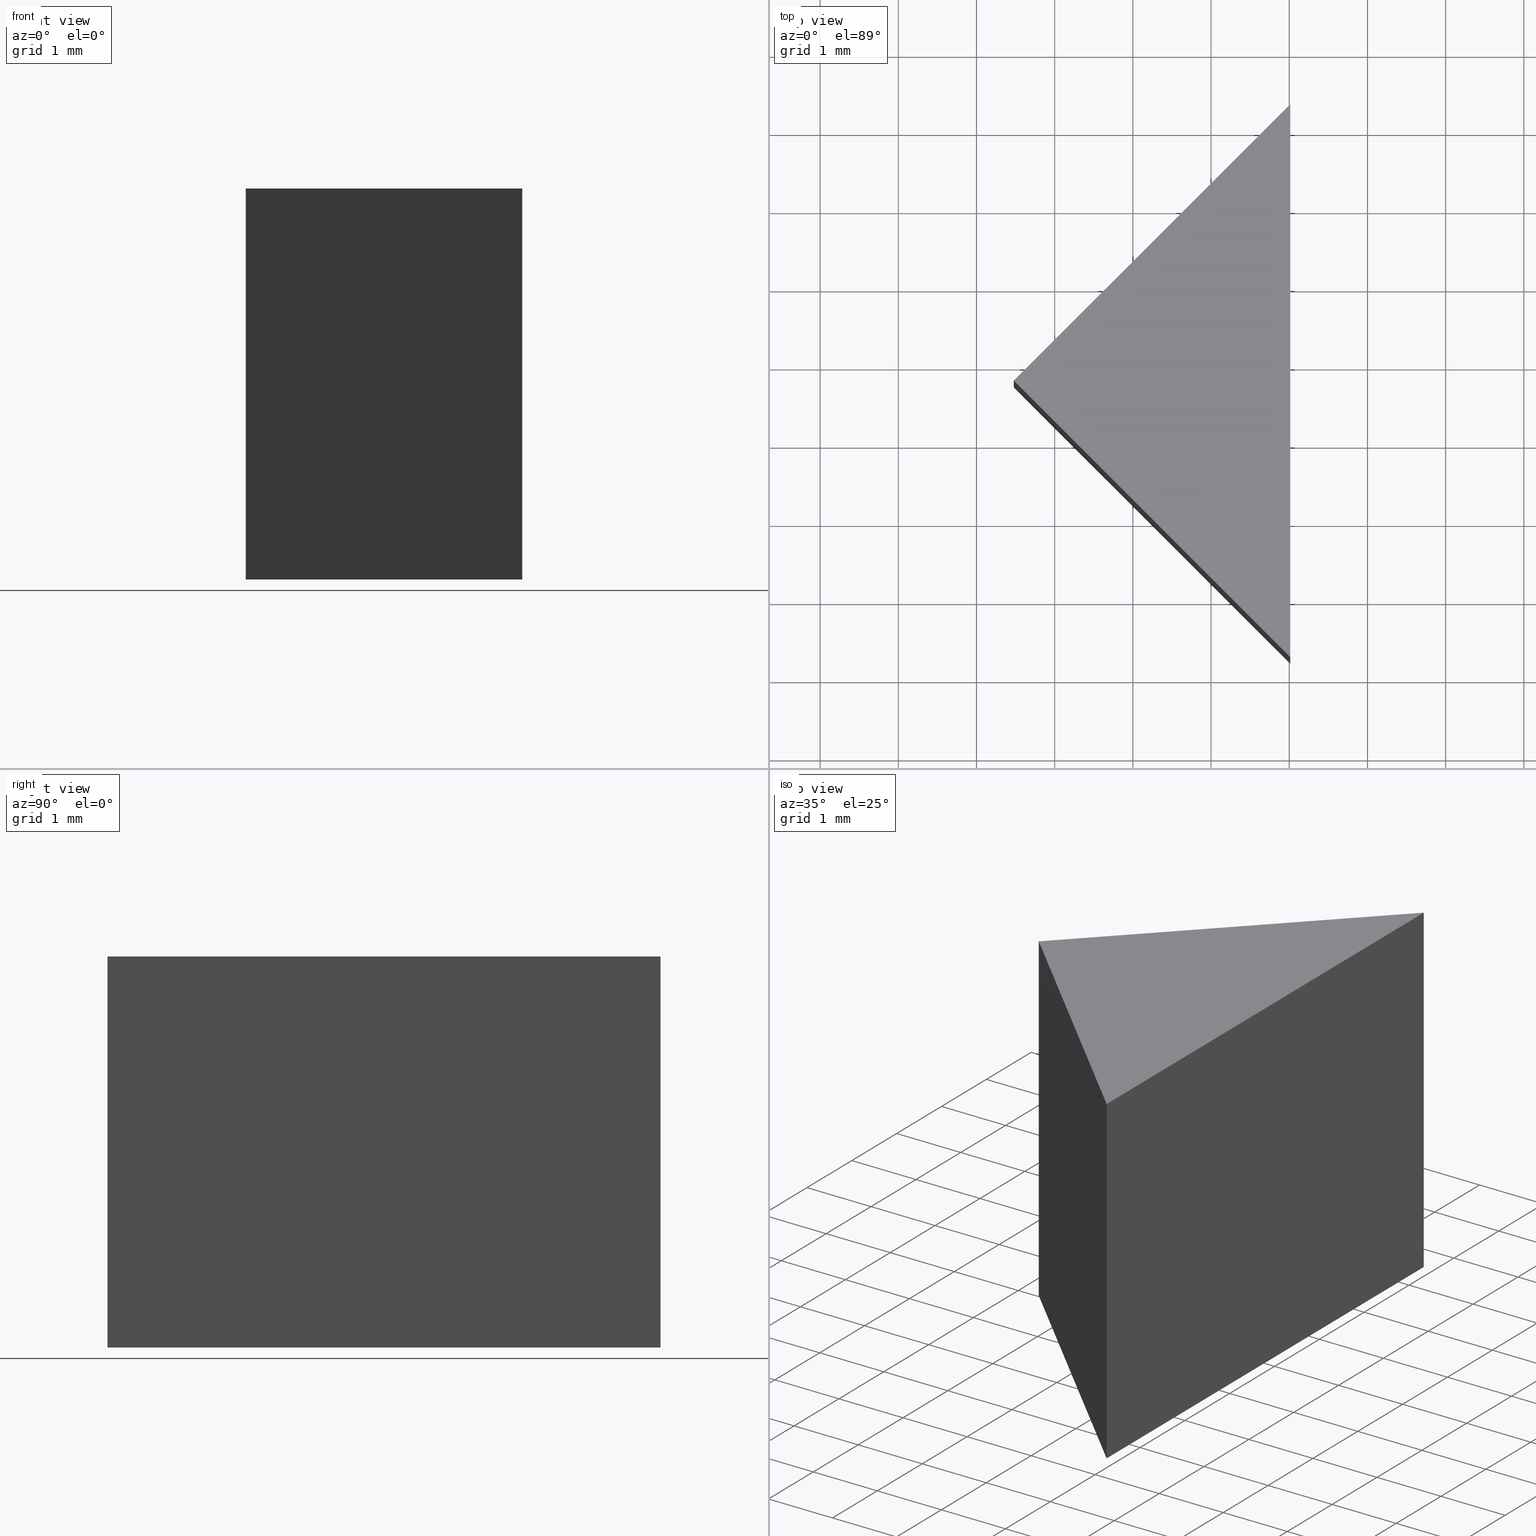
[diagram: canonical four-view strip — front | top / right | iso, engineering-drawing reading convention]
A machine part, canonical four-view strip (front | top / right | iso — engineering-drawing reading convention). The complete STEP part file that produces these views, byte-faithful:
ISO-10303-21;
HEADER;
FILE_DESCRIPTION (( 'STEP AP203' ),
    '1' );
FILE_NAME ('300009.STEP',
    '2025-05-26T07:04:01',
    ( 'Windows User' ),
    ( 'P R C' ),
    'SwSTEP 2.0',
    'SolidWorks 2020',
    '' );
FILE_SCHEMA (( 'CONFIG_CONTROL_DESIGN' ));
ENDSEC;

DATA;
#1 = PERSON_AND_ORGANIZATION ( #104, #89 ) ;
#2 = CARTESIAN_POINT ( 'NONE',  ( 55.47666995259492495, 13.77569255283406235, 5.000000000000000000 ) ) ;
#3 = APPROVAL_PERSON_ORGANIZATION ( #111, #88, #197 ) ;
#4 = CARTESIAN_POINT ( 'NONE',  ( 59.01220385852765560, 10.24015864690132283, -6.505213034913026604E-16 ) ) ;
#5 = VECTOR ( 'NONE', #137, 1000.000000000000000 ) ;
#6 = ORIENTED_EDGE ( 'NONE', *, *, #118, .F. ) ;
#7 = LINE ( 'NONE', #73, #91 ) ;
#8 = CC_DESIGN_PERSON_AND_ORGANIZATION_ASSIGNMENT ( #50, #33, ( #146 ) ) ;
#9 = VECTOR ( 'NONE', #17, 999.9999999999998863 ) ;
#10 = VECTOR ( 'NONE', #90, 1000.000000000000000 ) ;
#11 = PLANE ( 'NONE',  #27 ) ;
#12 = ORIENTED_EDGE ( 'NONE', *, *, #138, .F. ) ;
#13 = DIRECTION ( 'NONE',  ( -0.7071067811865467956, 0.7071067811865483499, 0.000000000000000000 ) ) ;
#14 = ADVANCED_FACE ( 'NONE', ( #85 ), #101, .F. ) ;
#15 = APPLICATION_PROTOCOL_DEFINITION ( 'international standard', 'config_control_design', 1994, #95 ) ;
#16 = APPROVAL_DATE_TIME ( #160, #69 ) ;
#17 = DIRECTION ( 'NONE',  ( 0.7071067811865467956, -0.7071067811865483499, 0.000000000000000000 ) ) ;
#18 = CARTESIAN_POINT ( 'NONE',  ( 55.47666995259492495, 13.77569255283406235, 5.000000000000000000 ) ) ;
#19 = SECURITY_CLASSIFICATION_LEVEL ( 'unclassified' ) ;
#20 = PERSON_AND_ORGANIZATION ( #104, #89 ) ;
#21 = EDGE_LOOP ( 'NONE', ( #62, #164, #202 ) ) ;
#22 = DATE_AND_TIME ( #59, #53 ) ;
#23 = DIRECTION ( 'NONE',  ( 1.000000000000000000, 0.000000000000000000, -0.000000000000000000 ) ) ;
#24 = EDGE_CURVE ( 'NONE', #77, #75, #7, .T. ) ;
#25 = CC_DESIGN_PERSON_AND_ORGANIZATION_ASSIGNMENT ( #177, #135, ( #158 ) ) ;
#26 = LOCAL_TIME ( 15, 4, 1.000000000000000000, #97 ) ;
#27 = AXIS2_PLACEMENT_3D ( 'NONE', #76, #65, #122 ) ;
#28 = CARTESIAN_POINT ( 'NONE',  ( 59.01220385852766981, 17.31122645876679655, 5.000000000000000000 ) ) ;
#29 = CLOSED_SHELL ( 'NONE', ( #123, #14, #47, #183, #83 ) ) ;
#30 = EDGE_LOOP ( 'NONE', ( #6, #113, #43, #121 ) ) ;
#31 = CARTESIAN_POINT ( 'NONE',  ( 59.01220385852766270, 17.31122645876678945, 5.000000000000000000 ) ) ;
#32 = PRODUCT_DEFINITION ( 'δ֪', '', #180, #174 ) ;
#33 = PERSON_AND_ORGANIZATION_ROLE ( 'design_owner' ) ;
#34 = CALENDAR_DATE ( 2025, 26, 5 ) ;
#35 = DIRECTION ( 'NONE',  ( 0.000000000000000000, 0.000000000000000000, 1.000000000000000000 ) ) ;
#36 = CARTESIAN_POINT ( 'NONE',  ( 55.47666995259492495, 13.77569255283406235, 5.000000000000000000 ) ) ;
#37 = PRODUCT_DEFINITION_SHAPE ( 'NONE', 'NONE',  #32 ) ;
#38 = DATE_AND_TIME ( #200, #26 ) ;
#39 = COORDINATED_UNIVERSAL_TIME_OFFSET ( 8, 0, .AHEAD. ) ;
#40 = PLANE ( 'NONE',  #128 ) ;
#41 = PERSON_AND_ORGANIZATION ( #104, #89 ) ;
#42 = CC_DESIGN_APPROVAL ( #69, ( #32 ) ) ;
#43 = ORIENTED_EDGE ( 'NONE', *, *, #64, .F. ) ;
#44 = CC_DESIGN_APPROVAL ( #175, ( #158 ) ) ;
#45 = CC_DESIGN_APPROVAL ( #88, ( #180 ) ) ;
#46 = DIRECTION ( 'NONE',  ( 0.7071067811865486830, 0.7071067811865464625, 0.000000000000000000 ) ) ;
#47 = ADVANCED_FACE ( 'NONE', ( #178 ), #40, .F. ) ;
#48 = CARTESIAN_POINT ( 'NONE',  ( 59.01220385852766981, 17.31122645876679655, 0.000000000000000000 ) ) ;
#49 = ORIENTED_EDGE ( 'NONE', *, *, #54, .T. ) ;
#50 = PERSON_AND_ORGANIZATION ( #104, #89 ) ;
#51 = PLANE ( 'NONE',  #81 ) ;
#52 = PERSON_AND_ORGANIZATION ( #104, #89 ) ;
#53 = LOCAL_TIME ( 15, 4, 1.000000000000000000, #39 ) ;
#54 = EDGE_CURVE ( 'NONE', #198, #149, #66, .T. ) ;
#55 = PERSON_AND_ORGANIZATION_ROLE ( 'design_supplier' ) ;
#56 = DIRECTION ( 'NONE',  ( 0.000000000000000000, 0.000000000000000000, 1.000000000000000000 ) ) ;
#57 = CALENDAR_DATE ( 2025, 26, 5 ) ;
#58 = ORIENTED_EDGE ( 'NONE', *, *, #64, .T. ) ;
#59 = CALENDAR_DATE ( 2025, 26, 5 ) ;
#60 = VECTOR ( 'NONE', #82, 1000.000000000000000 ) ;
#61 = MANIFOLD_SOLID_BREP ( 'NONE', #29 ) ;
#62 = ORIENTED_EDGE ( 'NONE', *, *, #24, .T. ) ;
#63 = DIRECTION ( 'NONE',  ( -1.962615573354719291E-15, -1.000000000000000000, 0.000000000000000000 ) ) ;
#64 = EDGE_CURVE ( 'NONE', #149, #77, #139, .T. ) ;
#65 = DIRECTION ( 'NONE',  ( -1.000000000000000000, 1.962615573354719291E-15, 0.000000000000000000 ) ) ;
#66 = LINE ( 'NONE', #120, #182 ) ;
#67 = LOCAL_TIME ( 15, 4, 1.000000000000000000, #179 ) ;
#68 = CARTESIAN_POINT ( 'NONE',  ( 55.47666995259492495, 13.77569255283406235, 0.000000000000000000 ) ) ;
#69 = APPROVAL ( #125, 'δָ��' ) ;
#70 = CC_DESIGN_PERSON_AND_ORGANIZATION_ASSIGNMENT ( #20, #55, ( #180 ) ) ;
#71 = DATE_AND_TIME ( #176, #143 ) ;
#72 = ORIENTED_EDGE ( 'NONE', *, *, #195, .F. ) ;
#73 = CARTESIAN_POINT ( 'NONE',  ( 59.01220385852765560, 10.24015864690132283, 5.000000000000000000 ) ) ;
#74 = LOCAL_TIME ( 15, 4, 1.000000000000000000, #94 ) ;
#75 = VERTEX_POINT ( 'NONE', #31 ) ;
#76 = CARTESIAN_POINT ( 'NONE',  ( 59.01220385852765560, 10.24015864690132283, 5.000000000000000000 ) ) ;
#77 = VERTEX_POINT ( 'NONE', #93 ) ;
#78 = DIRECTION ( 'NONE',  ( 0.7071067811865464625, -0.7071067811865486830, 0.000000000000000000 ) ) ;
#79 = MECHANICAL_CONTEXT ( 'NONE', #95, 'mechanical' ) ;
#80 = CARTESIAN_POINT ( 'NONE',  ( 55.47666995259492495, 13.77569255283406235, 5.000000000000000000 ) ) ;
#81 = AXIS2_PLACEMENT_3D ( 'NONE', #110, #35, #129 ) ;
#82 = DIRECTION ( 'NONE',  ( -0.7071067811865486830, -0.7071067811865464625, -0.000000000000000000 ) ) ;
#83 = ADVANCED_FACE ( 'NONE', ( #185 ), #157, .F. ) ;
#84 = APPROVAL_STATUS ( 'not_yet_approved' ) ;
#85 = FACE_OUTER_BOUND ( 'NONE', #194, .T. ) ;
#86 = DATE_TIME_ROLE ( 'classification_date' ) ;
#87 = SHAPE_DEFINITION_REPRESENTATION ( #37, #187 ) ;
#88 = APPROVAL ( #165, 'δָ��' ) ;
#89 = ORGANIZATION ( 'δָ��', 'δָ��', '' ) ;
#90 = DIRECTION ( 'NONE',  ( -0.000000000000000000, -0.000000000000000000, -1.000000000000000000 ) ) ;
#91 = VECTOR ( 'NONE', #132, 1000.000000000000000 ) ;
#92 = ORIENTED_EDGE ( 'NONE', *, *, #133, .T. ) ;
#93 = CARTESIAN_POINT ( 'NONE',  ( 59.01220385852765560, 10.24015864690132283, 5.000000000000000000 ) ) ;
#94 = COORDINATED_UNIVERSAL_TIME_OFFSET ( 8, 0, .AHEAD. ) ;
#95 = APPLICATION_CONTEXT ( 'configuration controlled 3d designs of mechanical parts and assemblies' ) ;
#96 = FACE_OUTER_BOUND ( 'NONE', #21, .T. ) ;
#97 = COORDINATED_UNIVERSAL_TIME_OFFSET ( 8, 0, .AHEAD. ) ;
#98 = CARTESIAN_POINT ( 'NONE',  ( 55.47666995259492495, 13.77569255283406235, 5.000000000000000000 ) ) ;
#99 = APPROVAL_PERSON_ORGANIZATION ( #1, #69, #189 ) ;
#100 = DATE_TIME_ROLE ( 'creation_date' ) ;
#101 = PLANE ( 'NONE',  #193 ) ;
#102 = PERSON_AND_ORGANIZATION_ROLE ( 'creator' ) ;
#103 = EDGE_CURVE ( 'NONE', #198, #107, #169, .T. ) ;
#104 = PERSON ( 'δָ��', 'δָ��', 'δָ��', ('δָ��'), ('δָ��'), ('δָ��') ) ;
#105 = VECTOR ( 'NONE', #171, 999.9999999999998863 ) ;
#106 = CARTESIAN_POINT ( 'NONE',  ( 55.47666995259492495, 13.77569255283406235, -9.757819552369539906E-16 ) ) ;
#107 = VERTEX_POINT ( 'NONE', #106 ) ;
#108 = LINE ( 'NONE', #28, #10 ) ;
#109 = CC_DESIGN_SECURITY_CLASSIFICATION ( #158, ( #180 ) ) ;
#110 = CARTESIAN_POINT ( 'NONE',  ( 0.000000000000000000, 0.000000000000000000, 5.000000000000000000 ) ) ;
#111 = PERSON_AND_ORGANIZATION ( #104, #89 ) ;
#112 = PERSON_AND_ORGANIZATION ( #104, #89 ) ;
#113 = ORIENTED_EDGE ( 'NONE', *, *, #24, .F. ) ;
#114 = APPROVAL_DATE_TIME ( #71, #88 ) ;
#115 = ORIENTED_EDGE ( 'NONE', *, *, #118, .T. ) ;
#116 = APPROVAL_DATE_TIME ( #22, #175 ) ;
#117 = VECTOR ( 'NONE', #204, 999.9999999999998863 ) ;
#118 = EDGE_CURVE ( 'NONE', #75, #198, #108, .T. ) ;
#119 = PRODUCT_RELATED_PRODUCT_CATEGORY ( 'detail', '', ( #146 ) ) ;
#120 = CARTESIAN_POINT ( 'NONE',  ( 59.01220385852765560, 10.24015864690132283, 0.000000000000000000 ) ) ;
#121 = ORIENTED_EDGE ( 'NONE', *, *, #54, .F. ) ;
#122 = DIRECTION ( 'NONE',  ( -1.962615573354719291E-15, -1.000000000000000000, 0.000000000000000000 ) ) ;
#123 = ADVANCED_FACE ( 'NONE', ( #153 ), #11, .F. ) ;
#124 = DIRECTION ( 'NONE',  ( 1.000000000000000000, 0.000000000000000000, 0.000000000000000000 ) ) ;
#125 = APPROVAL_STATUS ( 'not_yet_approved' ) ;
#126 =( GEOMETRIC_REPRESENTATION_CONTEXT ( 3 ) GLOBAL_UNCERTAINTY_ASSIGNED_CONTEXT ( ( #163 ) ) GLOBAL_UNIT_ASSIGNED_CONTEXT ( ( #161, #190, #188 ) ) REPRESENTATION_CONTEXT ( 'NONE', 'WORKASPACE' ) );
#127 = LINE ( 'NONE', #80, #134 ) ;
#128 = AXIS2_PLACEMENT_3D ( 'NONE', #98, #78, #46 ) ;
#129 = DIRECTION ( 'NONE',  ( 1.000000000000000000, 0.000000000000000000, -0.000000000000000000 ) ) ;
#130 = COORDINATED_UNIVERSAL_TIME_OFFSET ( 8, 0, .AHEAD. ) ;
#131 = ORIENTED_EDGE ( 'NONE', *, *, #154, .T. ) ;
#132 = DIRECTION ( 'NONE',  ( 1.962615573354719291E-15, 1.000000000000000000, -0.000000000000000000 ) ) ;
#133 = EDGE_CURVE ( 'NONE', #186, #107, #127, .T. ) ;
#134 = VECTOR ( 'NONE', #162, 1000.000000000000000 ) ;
#135 = PERSON_AND_ORGANIZATION_ROLE ( 'classification_officer' ) ;
#136 = ORIENTED_EDGE ( 'NONE', *, *, #103, .F. ) ;
#137 = DIRECTION ( 'NONE',  ( 0.000000000000000000, 0.000000000000000000, 1.000000000000000000 ) ) ;
#138 = EDGE_CURVE ( 'NONE', #186, #77, #192, .T. ) ;
#139 = LINE ( 'NONE', #184, #5 ) ;
#140 = APPROVAL_PERSON_ORGANIZATION ( #52, #175, #150 ) ;
#141 = APPLICATION_PROTOCOL_DEFINITION ( 'international standard', 'config_control_design', 1994, #145 ) ;
#142 = LINE ( 'NONE', #68, #9 ) ;
#143 = LOCAL_TIME ( 15, 4, 1.000000000000000000, #130 ) ;
#144 = CARTESIAN_POINT ( 'NONE',  ( 59.01220385852766270, 17.31122645876679300, -6.505213034913026604E-16 ) ) ;
#145 = APPLICATION_CONTEXT ( 'configuration controlled 3d designs of mechanical parts and assemblies' ) ;
#146 = PRODUCT ( '300009', '300009', '', ( #79 ) ) ;
#147 = PERSON_AND_ORGANIZATION_ROLE ( 'creator' ) ;
#148 = DATE_AND_TIME ( #57, #67 ) ;
#149 = VERTEX_POINT ( 'NONE', #4 ) ;
#150 = APPROVAL_ROLE ( '' ) ;
#151 = ORIENTED_EDGE ( 'NONE', *, *, #103, .T. ) ;
#152 = AXIS2_PLACEMENT_3D ( 'NONE', #203, #167, #13 ) ;
#153 = FACE_OUTER_BOUND ( 'NONE', #30, .T. ) ;
#154 = EDGE_CURVE ( 'NONE', #107, #149, #142, .T. ) ;
#155 = EDGE_LOOP ( 'NONE', ( #58, #12, #92, #131 ) ) ;
#156 = CC_DESIGN_PERSON_AND_ORGANIZATION_ASSIGNMENT ( #112, #102, ( #180 ) ) ;
#157 = PLANE ( 'NONE',  #152 ) ;
#158 = SECURITY_CLASSIFICATION ( '', '', #19 ) ;
#159 = DIRECTION ( 'NONE',  ( 0.000000000000000000, 0.000000000000000000, 1.000000000000000000 ) ) ;
#160 = DATE_AND_TIME ( #34, #74 ) ;
#161 =( LENGTH_UNIT ( ) NAMED_UNIT ( * ) SI_UNIT ( .MILLI., .METRE. ) );
#162 = DIRECTION ( 'NONE',  ( 0.000000000000000000, -0.000000000000000000, -1.000000000000000000 ) ) ;
#163 = UNCERTAINTY_MEASURE_WITH_UNIT (LENGTH_MEASURE( 1.000000000000000082E-05 ), #161, 'distance_accuracy_value', 'NONE');
#164 = ORIENTED_EDGE ( 'NONE', *, *, #195, .T. ) ;
#165 = APPROVAL_STATUS ( 'not_yet_approved' ) ;
#166 = CARTESIAN_POINT ( 'NONE',  ( 0.000000000000000000, 0.000000000000000000, 0.000000000000000000 ) ) ;
#167 = DIRECTION ( 'NONE',  ( 0.7071067811865483499, 0.7071067811865467956, -0.000000000000000000 ) ) ;
#168 = ORIENTED_EDGE ( 'NONE', *, *, #154, .F. ) ;
#169 = LINE ( 'NONE', #48, #117 ) ;
#170 = CARTESIAN_POINT ( 'NONE',  ( 0.000000000000000000, 0.000000000000000000, 0.000000000000000000 ) ) ;
#171 = DIRECTION ( 'NONE',  ( 0.7071067811865467956, -0.7071067811865483499, 0.000000000000000000 ) ) ;
#172 = LINE ( 'NONE', #36, #60 ) ;
#173 = CC_DESIGN_PERSON_AND_ORGANIZATION_ASSIGNMENT ( #41, #147, ( #32 ) ) ;
#174 = DESIGN_CONTEXT ( 'detailed design', #145, 'design' ) ;
#175 = APPROVAL ( #84, 'δָ��' ) ;
#176 = CALENDAR_DATE ( 2025, 26, 5 ) ;
#177 = PERSON_AND_ORGANIZATION ( #104, #89 ) ;
#178 = FACE_OUTER_BOUND ( 'NONE', #199, .T. ) ;
#179 = COORDINATED_UNIVERSAL_TIME_OFFSET ( 8, 0, .AHEAD. ) ;
#180 = PRODUCT_DEFINITION_FORMATION_WITH_SPECIFIED_SOURCE ( '�κ�', '', #146, .NOT_KNOWN. ) ;
#181 = ORIENTED_EDGE ( 'NONE', *, *, #133, .F. ) ;
#182 = VECTOR ( 'NONE', #63, 1000.000000000000000 ) ;
#183 = ADVANCED_FACE ( 'NONE', ( #96 ), #51, .T. ) ;
#184 = CARTESIAN_POINT ( 'NONE',  ( 59.01220385852765560, 10.24015864690132283, 5.000000000000000000 ) ) ;
#185 = FACE_OUTER_BOUND ( 'NONE', #155, .T. ) ;
#186 = VERTEX_POINT ( 'NONE', #18 ) ;
#187 = ADVANCED_BREP_SHAPE_REPRESENTATION ( '300009', ( #61, #191 ), #126 ) ;
#188 =( NAMED_UNIT ( * ) SI_UNIT ( $, .STERADIAN. ) SOLID_ANGLE_UNIT ( ) );
#189 = APPROVAL_ROLE ( '' ) ;
#190 =( NAMED_UNIT ( * ) PLANE_ANGLE_UNIT ( ) SI_UNIT ( $, .RADIAN. ) );
#191 = AXIS2_PLACEMENT_3D ( 'NONE', #170, #159, #124 ) ;
#192 = LINE ( 'NONE', #2, #105 ) ;
#193 = AXIS2_PLACEMENT_3D ( 'NONE', #166, #56, #23 ) ;
#194 = EDGE_LOOP ( 'NONE', ( #136, #49, #168 ) ) ;
#195 = EDGE_CURVE ( 'NONE', #75, #186, #172, .T. ) ;
#196 = CC_DESIGN_DATE_AND_TIME_ASSIGNMENT ( #38, #86, ( #158 ) ) ;
#197 = APPROVAL_ROLE ( '' ) ;
#198 = VERTEX_POINT ( 'NONE', #144 ) ;
#199 = EDGE_LOOP ( 'NONE', ( #181, #72, #115, #151 ) ) ;
#200 = CALENDAR_DATE ( 2025, 26, 5 ) ;
#201 = CC_DESIGN_DATE_AND_TIME_ASSIGNMENT ( #148, #100, ( #32 ) ) ;
#202 = ORIENTED_EDGE ( 'NONE', *, *, #138, .T. ) ;
#203 = CARTESIAN_POINT ( 'NONE',  ( 55.47666995259492495, 13.77569255283406235, 5.000000000000000000 ) ) ;
#204 = DIRECTION ( 'NONE',  ( -0.7071067811865486830, -0.7071067811865464625, 0.000000000000000000 ) ) ;
ENDSEC;
END-ISO-10303-21;
